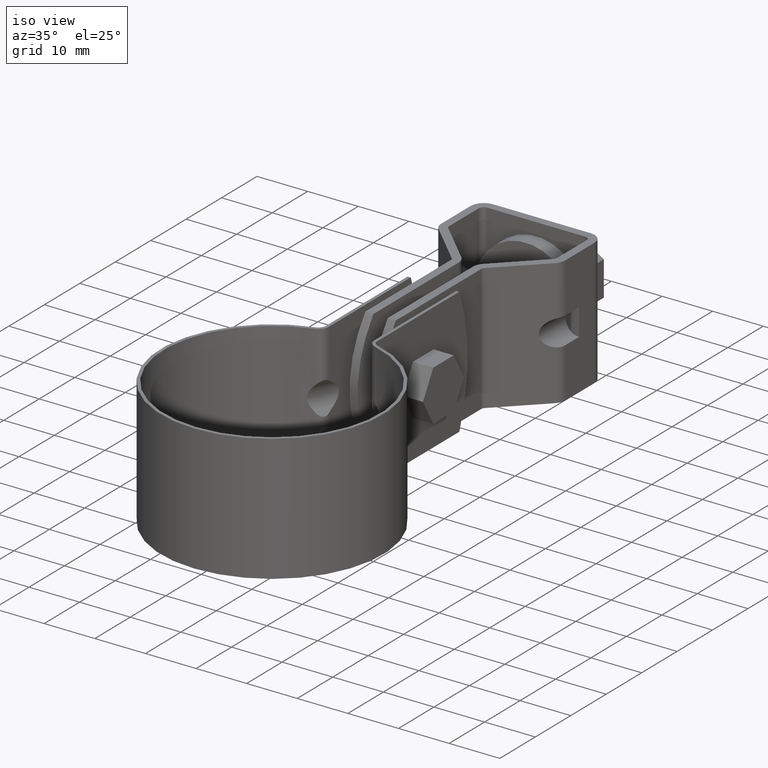
[diagram: clean part render]
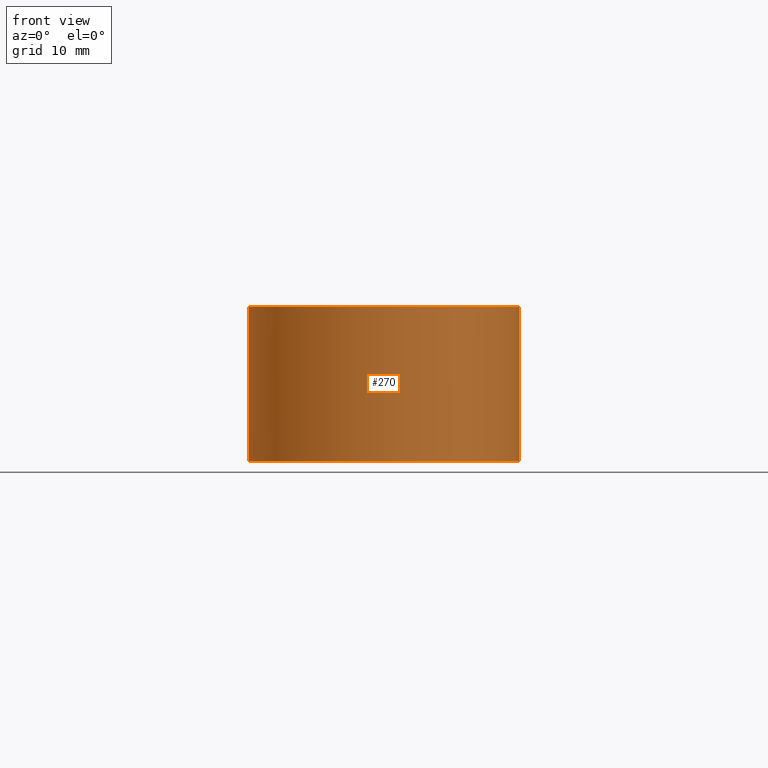
[diagram: tour spotlight — one face highlighted and labeled with its STEP entity id]
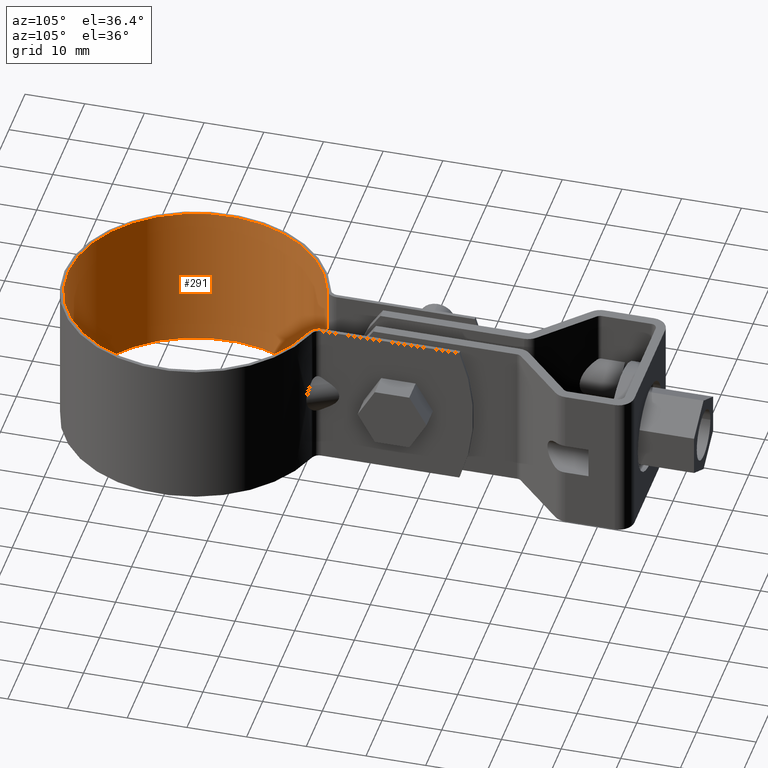
[diagram: tour spotlight — one face highlighted and labeled with its STEP entity id]
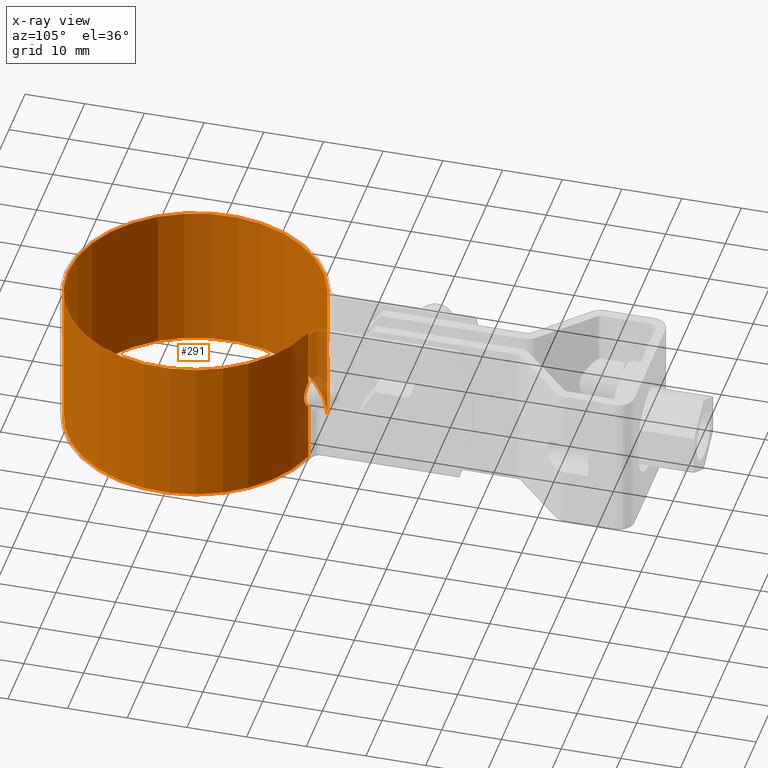
[diagram: x-ray of the same camera — body ghosted, this tour face saturated]
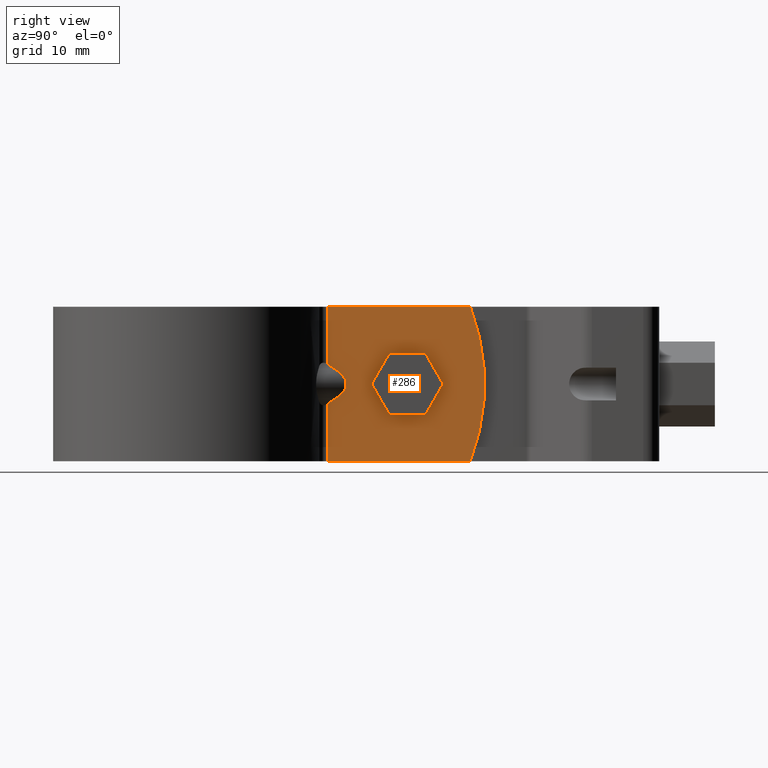
[diagram: tour spotlight — one face highlighted and labeled with its STEP entity id]
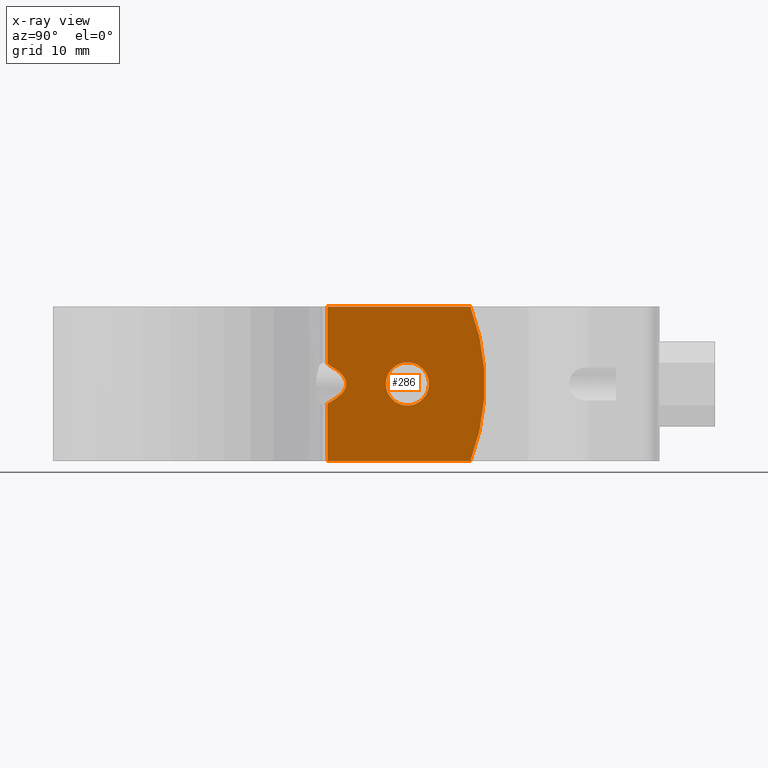
[diagram: x-ray of the same camera — body ghosted, this tour face saturated]
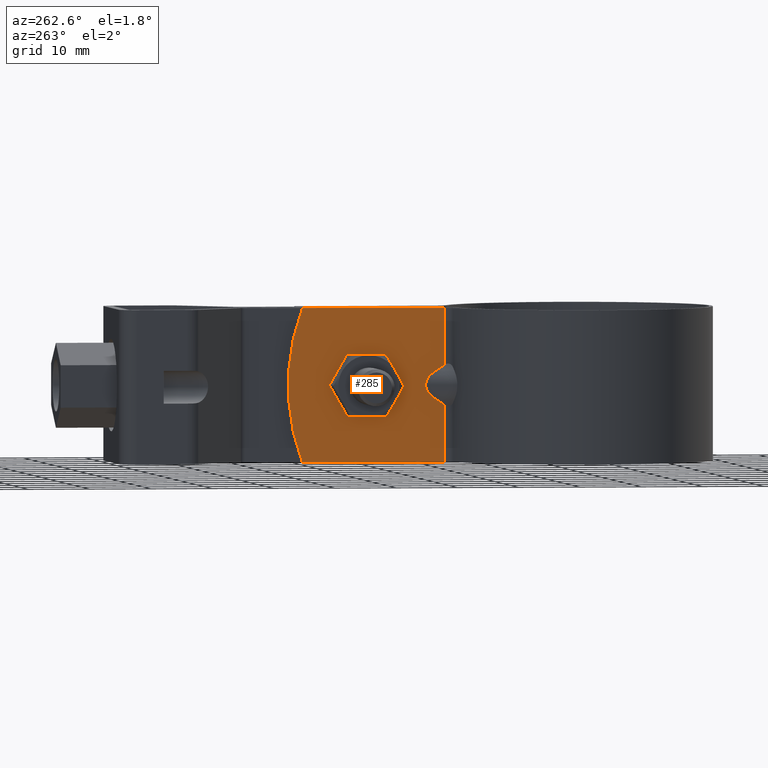
[diagram: tour spotlight — one face highlighted and labeled with its STEP entity id]
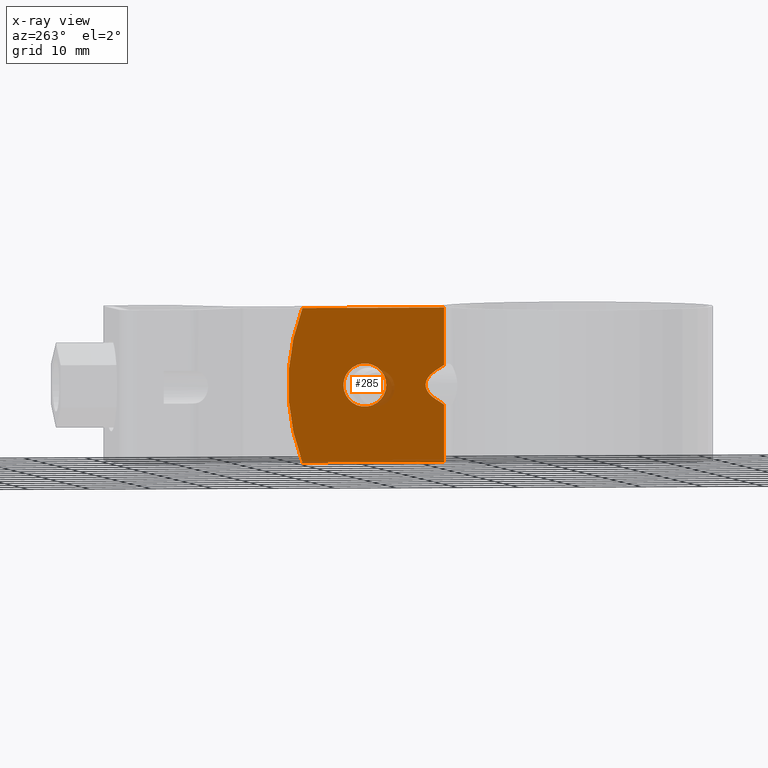
[diagram: x-ray of the same camera — body ghosted, this tour face saturated]
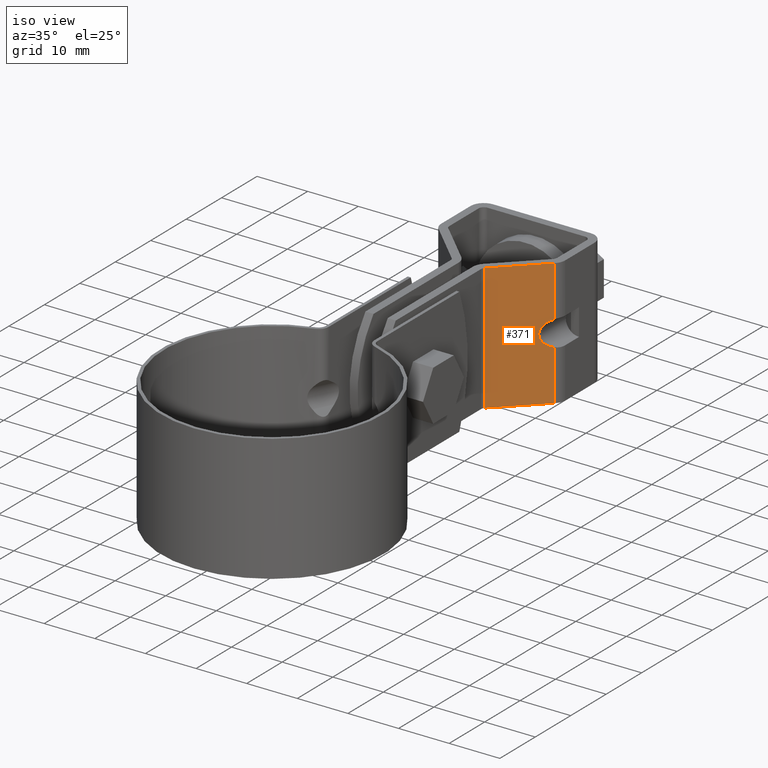
[diagram: tour spotlight — one face highlighted and labeled with its STEP entity id]
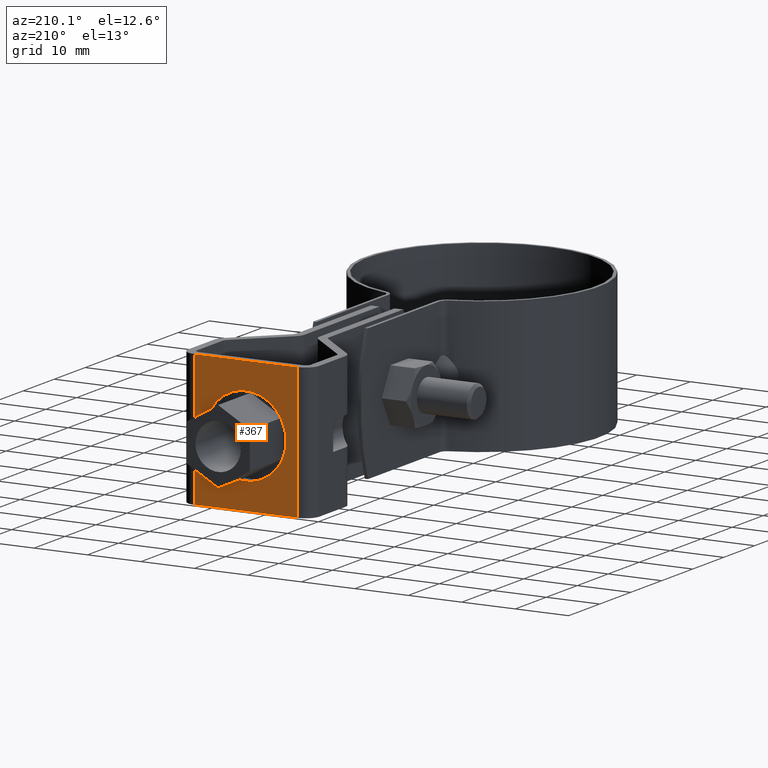
[diagram: tour spotlight — one face highlighted and labeled with its STEP entity id]
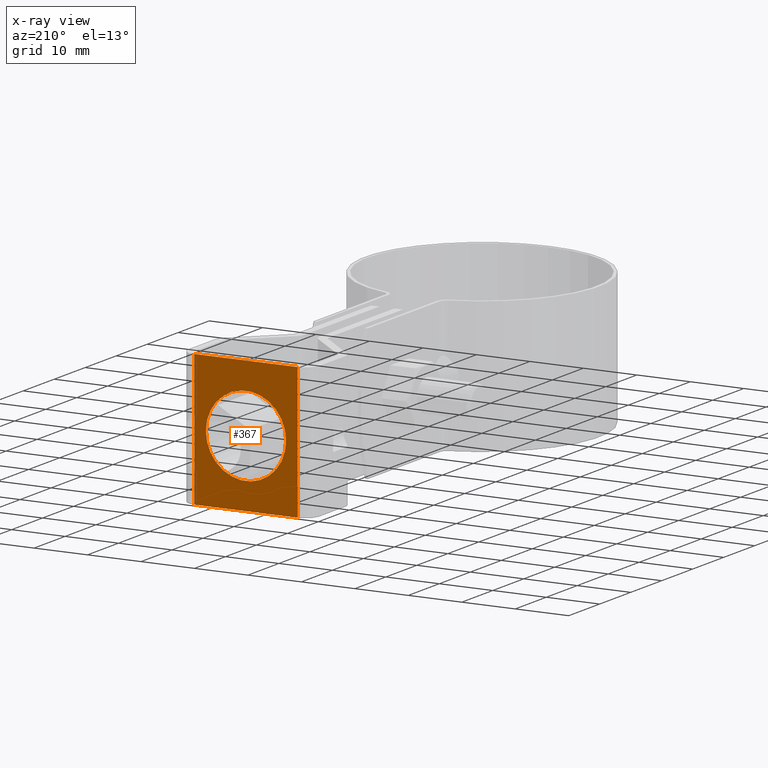
[diagram: x-ray of the same camera — body ghosted, this tour face saturated]
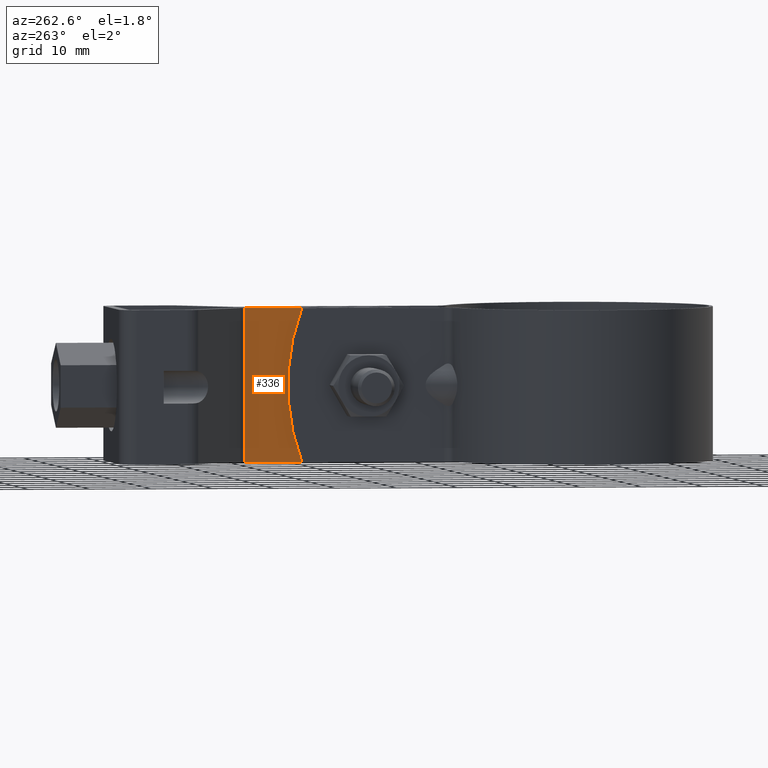
[diagram: tour spotlight — one face highlighted and labeled with its STEP entity id]
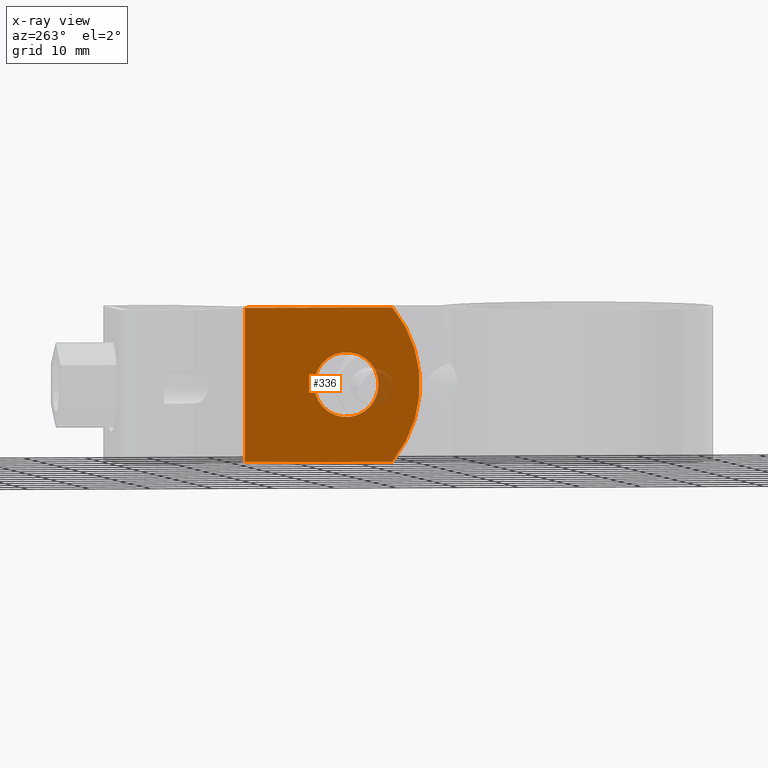
[diagram: x-ray of the same camera — body ghosted, this tour face saturated]
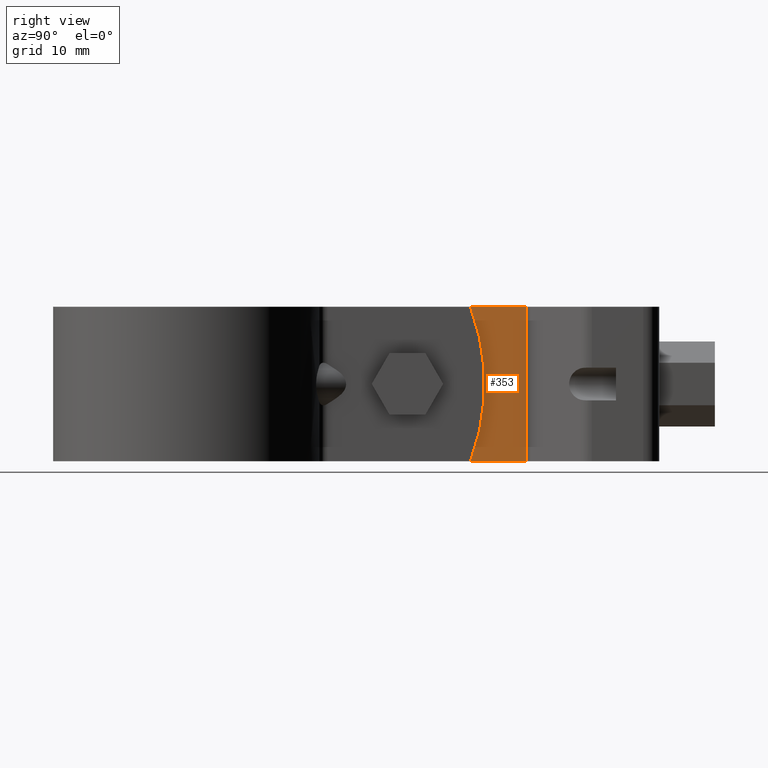
[diagram: tour spotlight — one face highlighted and labeled with its STEP entity id]
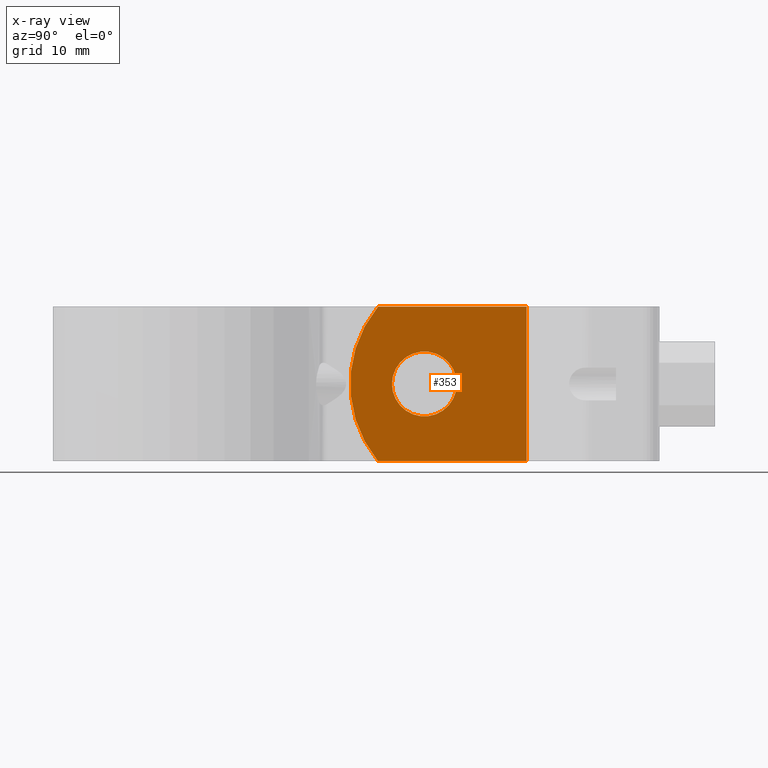
[diagram: x-ray of the same camera — body ghosted, this tour face saturated]
A machine part: a face-by-face anatomy tour. The part has 122 B-rep faces; the first image is the clean iso view, then the 8 largest visible faces are spotlighted one at a time (largest first), each with its STEP entity span.

Face 1 — front view, entity #270. In plain terms, the highlighted cylindrical surface (partial cylindrical patch) has radius 21.95 mm, axis along (0, 0, -1).
Definition (entity closure, byte-faithful):
#270 = ADVANCED_FACE( '', ( #396 ), #397, .T. );
#396 = FACE_OUTER_BOUND( '', #668, .T. );
#397 = CYLINDRICAL_SURFACE( '', #669, 21.9500000000000 );
#668 = EDGE_LOOP( '', ( #963, #964, #965, #966, #967, #968, #969, #970, #971, #972, #973, #974 ) );
#669 = AXIS2_PLACEMENT_3D( '', #975, #976, #977 );
#963 = ORIENTED_EDGE( '', *, *, #1953, .F. );
#964 = ORIENTED_EDGE( '', *, *, #1952, .T. );
#965 = ORIENTED_EDGE( '', *, *, #1954, .F. );
#966 = ORIENTED_EDGE( '', *, *, #1955, .F. );
#967 = ORIENTED_EDGE( '', *, *, #1956, .F. );
#968 = ORIENTED_EDGE( '', *, *, #1957, .F. );
#969 = ORIENTED_EDGE( '', *, *, #1958, .F. );
#970 = ORIENTED_EDGE( '', *, *, #1959, .F. );
#971 = ORIENTED_EDGE( '', *, *, #1941, .T. );
#972 = ORIENTED_EDGE( '', *, *, #1960, .T. );
#973 = ORIENTED_EDGE( '', *, *, #1961, .F. );
#974 = ORIENTED_EDGE( '', *, *, #1962, .F. );
#975 = CARTESIAN_POINT( '', ( 0.000000000000000, 0.000000000000000, -12.5000000000000 ) );
#976 = DIRECTION( '', ( 0.000000000000000, 0.000000000000000, -1.00000000000000 ) );
#977 = DIRECTION( '', ( -1.00000000000000, 6.06692130572647E-017, 0.000000000000000 ) );
#1941 = EDGE_CURVE( '', #2266, #2264, #2267, .T. );
#1952 = EDGE_CURVE( '', #2281, #2285, #2287, .T. );
#1953 = EDGE_CURVE( '', #2281, #2288, #2289, .F. );
#1954 = EDGE_CURVE( '', #2290, #2285, #2291, .T. );
#1955 = EDGE_CURVE( '', #2292, #2290, #2293, .T. );
#1956 = EDGE_CURVE( '', #2294, #2292, #2295, .F. );
#1957 = EDGE_CURVE( '', #2296, #2294, #2297, .T. );
#1958 = EDGE_CURVE( '', #2298, #2296, #2299, .F. );
#1959 = EDGE_CURVE( '', #2266, #2298, #2300, .T. );
#1960 = EDGE_CURVE( '', #2264, #2301, #2302, .T. );
#1961 = EDGE_CURVE( '', #2303, #2301, #2304, .F. );
#1962 = EDGE_CURVE( '', #2288, #2303, #2305, .T. );
#2264 = VERTEX_POINT( '', #2800 );
#2266 = VERTEX_POINT( '', #2802 );
#2267 = CIRCLE( '', #2803, 21.9500000000000 );
#2281 = VERTEX_POINT( '', #2821 );
#2285 = VERTEX_POINT( '', #2826 );
#2287 = LINE( '', #2828, #2829 );
#2288 = VERTEX_POINT( '', #2830 );
#2289 = ELLIPSE( '', #2831, 38.2686571638831, 21.9500000000000 );
#2290 = VERTEX_POINT( '', #2832 );
#2291 = CIRCLE( '', #2833, 21.9500000000000 );
#2292 = VERTEX_POINT( '', #2834 );
#2293 = LINE( '', #2835, #2836 );
#2294 = VERTEX_POINT( '', #2837 );
#2295 = ELLIPSE( '', #2838, 38.2686571638831, 21.9500000000000 );
#2296 = VERTEX_POINT( '', #2839 );
#2297 = B_SPLINE_CURVE_WITH_KNOTS( '', 3, ( #2840, #2841, #2842, #2843, #2844, #2845, #2846, #2847, #2848, #2849, #2850, #2851, #2852, #2853, #2854, #2855, #2856, #2857 ), .UNSPECIFIED., .F., .F., ( 4, 2, 2, 2, 2, 2, 2, 2, 4 ), ( 1.00029035355737E-017, 0.000643646225416495, 0.00128729245083298, 0.00193093867624947, 0.00257458490166595, 0.00321823112708244, 0.00386187735249892, 0.00450552357791541, 0.00514916980333189 ), .UNSPECIFIED. );
#2298 = VERTEX_POINT( '', #2858 );
#2299 = ELLIPSE( '', #2859, 38.2686571638831, 21.9500000000000 );
#2300 = LINE( '', #2860, #2861 );
#2301 = VERTEX_POINT( '', #2862 );
#2302 = LINE( '', #2863, #2864 );
#2303 = VERTEX_POINT( '', #2865 );
#2304 = ELLIPSE( '', #2866, 38.2686571638831, 21.9500000000000 );
#2305 = B_SPLINE_CURVE_WITH_KNOTS( '', 3, ( #2867, #2868, #2869, #2870, #2871, #2872, #2873, #2874, #2875, #2876, #2877, #2878, #2879, #2880, #2881, #2882, #2883, #2884 ), .UNSPECIFIED., .F., .F., ( 4, 2, 2, 2, 2, 2, 2, 2, 4 ), ( 0.000000000000000, 0.000643003230828981, 0.00128600646165796, 0.00192900969248694, 0.00257201292331592, 0.00321501615414490, 0.00385801938497388, 0.00450102261580286, 0.00514402584663184 ), .UNSPECIFIED. );
#2800 = CARTESIAN_POINT( '', ( 6.11027837259102, 21.0823859705074, -12.5000000000000 ) );
#2802 = CARTESIAN_POINT( '', ( -6.11027837259099, 21.0823859705074, -12.5000000000000 ) );
#2803 = AXIS2_PLACEMENT_3D( '', #3686, #3687, #3688 );
#2821 = CARTESIAN_POINT( '', ( 6.11027837259102, 21.0823859705074, 2.81199475558775 ) );
#2826 = CARTESIAN_POINT( '', ( 6.11027837259102, 21.0823859705074, 12.5000000000000 ) );
#2828 = CARTESIAN_POINT( '', ( 6.11027837259102, 21.0823859705074, -12.5000000000000 ) );
#2829 = VECTOR( '', #3709, 1000.00000000000 );
#2830 = CARTESIAN_POINT( '', ( 6.59117679013547, 20.9370219592276, 2.29430574540413 ) );
#2831 = AXIS2_PLACEMENT_3D( '', #3710, #3711, #3712 );
#2832 = CARTESIAN_POINT( '', ( -6.11027837259100, 21.0823859705074, 12.5000000000000 ) );
#2833 = AXIS2_PLACEMENT_3D( '', #3713, #3714, #3715 );
#2834 = CARTESIAN_POINT( '', ( -6.11027837259100, 21.0823859705074, 2.81199475558776 ) );
#2835 = CARTESIAN_POINT( '', ( -6.11027837259100, 21.0823859705074, -12.5000000000000 ) );
#2836 = VECTOR( '', #3716, 1000.00000000000 );
#2837 = CARTESIAN_POINT( '', ( -6.59117679013547, 20.9370219592276, 2.29430574540413 ) );
#2838 = AXIS2_PLACEMENT_3D( '', #3717, #3718, #3719 );
#2839 = CARTESIAN_POINT( '', ( -6.59117679013544, 20.9370219592276, -2.29430574540421 ) );
#2840 = CARTESIAN_POINT( '', ( -6.59117679013547, 20.9370219592276, -2.29430574540424 ) );
#2841 = CARTESIAN_POINT( '', ( -6.73596642015415, 20.8914407848519, -2.13961577287858 ) );
#2842 = CARTESIAN_POINT( '', ( -6.86855956127921, 20.8480484759778, -1.97590041503399 ) );
#2843 = CARTESIAN_POINT( '', ( -7.10639212043767, 20.7681830388251, -1.62776142069920 ) );
#2844 = CARTESIAN_POINT( '', ( -7.21236482773339, 20.7314476503326, -1.44181096666878 ) );
#2845 = CARTESIAN_POINT( '', ( -7.38756508147717, 20.6696640092127, -1.05137800395723 ) );
#2846 = CARTESIAN_POINT( '', ( -7.45590755129852, 20.6449610943123, -0.849531728088050 ) );
#2847 = CARTESIAN_POINT( '', ( -7.54943236496550, 20.6109448343832, -0.430812582704735 ) );
#2848 = CARTESIAN_POINT( '', ( -7.57387951252292, 20.6019137251735, -0.212867292429495 ) );
#2849 = CARTESIAN_POINT( '', ( -7.57369458146983, 20.6019817104161, 0.215368904668619 ) );
#2850 = CARTESIAN_POINT( '', ( -7.54980073066154, 20.6108110979059, 0.429304921686981 ) );
#2851 = CARTESIAN_POINT( '', ( -7.45535136804637, 20.6451631421316, 0.851879983639534 ) );
#2852 = CARTESIAN_POINT( '', ( -7.38648519218861, 20.6700493905331, 1.05414795200619 ) );
#2853 = CARTESIAN_POINT( '', ( -7.21151355048943, 20.7317432362213, 1.44334057757107 ) );
#2854 = CARTESIAN_POINT( '', ( -7.10481791751957, 20.7687220786617, 1.63034635054457 ) );
#2855 = CARTESIAN_POINT( '', ( -6.86683761629650, 20.8486161548725, 1.97813646589285 ) );
#2856 = CARTESIAN_POINT( '', ( -6.73472499460489, 20.8918315976085, 2.14094208391388 ) );
#2857 = CARTESIAN_POINT( '', ( -6.59117679013547, 20.9370219592276, 2.29430574540413 ) );
#2858 = CARTESIAN_POINT( '', ( -6.11027837259100, 21.0823859705074, -2.81199475558785 ) );
#2859 = AXIS2_PLACEMENT_3D( '', #3720, #3721, #3722 );
#2860 = CARTESIAN_POINT( '', ( -6.11027837259100, 21.0823859705074, -12.5000000000000 ) );
#2861 = VECTOR( '', #3723, 1000.00000000000 );
#2862 = CARTESIAN_POINT( '', ( 6.11027837259102, 21.0823859705074, -2.81199475558784 ) );
#2863 = CARTESIAN_POINT( '', ( 6.11027837259102, 21.0823859705074, -12.5000000000000 ) );
#2864 = VECTOR( '', #3724, 1000.00000000000 );
#2865 = CARTESIAN_POINT( '', ( 6.59117679013544, 20.9370219592276, -2.29430574540421 ) );
#2866 = AXIS2_PLACEMENT_3D( '', #3725, #3726, #3727 );
#2867 = CARTESIAN_POINT( '', ( 6.59117679013547, 20.9370219592276, 2.29430574540413 ) );
#2868 = CARTESIAN_POINT( '', ( 6.73582177711151, 20.8914863198792, 2.13977030624034 ) );
#2869 = CARTESIAN_POINT( '', ( 6.86829440793467, 20.8481352475892, 1.97622733239020 ) );
#2870 = CARTESIAN_POINT( '', ( 7.10594441589945, 20.7683356418849, 1.62847780042625 ) );
#2871 = CARTESIAN_POINT( '', ( 7.21184957794919, 20.7316268444520, 1.44275932231320 ) );
#2872 = CARTESIAN_POINT( '', ( 7.38702972922578, 20.6698552905458, 1.05276971445064 ) );
#2873 = CARTESIAN_POINT( '', ( 7.45540309755228, 20.6451434835998, 0.851159409986368 ) );
#2874 = CARTESIAN_POINT( '', ( 7.54909477616163, 20.6110686978125, 0.432949150168239 ) );
#2875 = CARTESIAN_POINT( '', ( 7.57368982252000, 20.6019834599240, 0.215228123105817 ) );
#2876 = CARTESIAN_POINT( '', ( 7.57388421364647, 20.6019119969240, -0.212596009195423 ) );
#2877 = CARTESIAN_POINT( '', ( 7.55024159148472, 20.6106489194631, -0.426258387843371 ) );
#2878 = CARTESIAN_POINT( '', ( 7.45632254419125, 20.6448117232426, -0.848592946797394 ) );
#2879 = CARTESIAN_POINT( '', ( 7.38774380881195, 20.6695981046082, -1.05074959656046 ) );
#2880 = CARTESIAN_POINT( '', ( 7.21339718332191, 20.7310864516625, -1.43973888924279 ) );
#2881 = CARTESIAN_POINT( '', ( 7.10706589190063, 20.7679542000608, -1.62670539277040 ) );
#2882 = CARTESIAN_POINT( '', ( 6.86869483637674, 20.8480056238570, -1.97577192531011 ) );
#2883 = CARTESIAN_POINT( '', ( 6.73593818465854, 20.8914496736587, -2.13964593904475 ) );
#2884 = CARTESIAN_POINT( '', ( 6.59117679013548, 20.9370219592276, -2.29430574540423 ) );
#3686 = CARTESIAN_POINT( '', ( 0.000000000000000, 0.000000000000000, -12.5000000000000 ) );
#3687 = DIRECTION( '', ( 0.000000000000000, 0.000000000000000, 1.00000000000000 ) );
#3688 = DIRECTION( '', ( 1.00000000000000, 0.000000000000000, 0.000000000000000 ) );
#3709 = DIRECTION( '', ( 0.000000000000000, 0.000000000000000, 1.00000000000000 ) );
#3710 = CARTESIAN_POINT( '', ( 0.000000000000000, 0.000000000000000, 24.2563523462386 ) );
#3711 = DIRECTION( '', ( 0.729869815763731, 0.371887245949431, 0.573576436351046 ) );
#3712 = DIRECTION( '', ( -0.511060346909496, -0.260398252977840, 0.819152044288992 ) );
#3713 = CARTESIAN_POINT( '', ( 0.000000000000000, 0.000000000000000, 12.5000000000000 ) );
#3714 = DIRECTION( '', ( 0.000000000000000, 0.000000000000000, 1.00000000000000 ) );
#3715 = DIRECTION( '', ( 1.00000000000000, 0.000000000000000, 0.000000000000000 ) );
#3716 = DIRECTION( '', ( 0.000000000000000, 0.000000000000000, 1.00000000000000 ) );
#3717 = CARTESIAN_POINT( '', ( 0.000000000000000, 0.000000000000000, 24.2563523462386 ) );
#3718 = DIRECTION( '', ( -0.729869815763731, 0.371887245949431, 0.573576436351046 ) );
#3719 = DIRECTION( '', ( 0.511060346909496, -0.260398252977840, 0.819152044288992 ) );
#3720 = CARTESIAN_POINT( '', ( 0.000000000000000, 0.000000000000000, -24.2563523462387 ) );
#3721 = DIRECTION( '', ( -0.729869815763730, 0.371887245949432, -0.573576436351046 ) );
#3722 = DIRECTION( '', ( -0.511060346909496, 0.260398252977841, 0.819152044288992 ) );
#3723 = DIRECTION( '', ( 0.000000000000000, 0.000000000000000, 1.00000000000000 ) );
#3724 = DIRECTION( '', ( 0.000000000000000, 0.000000000000000, 1.00000000000000 ) );
#3725 = CARTESIAN_POINT( '', ( 0.000000000000000, 0.000000000000000, -24.2563523462387 ) );
#3726 = DIRECTION( '', ( 0.729869815763730, 0.371887245949432, -0.573576436351046 ) );
#3727 = DIRECTION( '', ( 0.511060346909496, 0.260398252977841, 0.819152044288992 ) );

Face 2 — auxiliary view, entity #291. An x-ray twin of the same camera follows (body ghosted, this face saturated) — the face is partly hidden behind the body. In plain terms, the highlighted cylindrical surface (partial cylindrical patch) has radius 21.35 mm, axis along (0, 0, -1).
Definition (entity closure, byte-faithful):
#291 = ADVANCED_FACE( '', ( #443 ), #444, .F. );
#443 = FACE_OUTER_BOUND( '', #715, .T. );
#444 = CYLINDRICAL_SURFACE( '', #716, 21.3500000000000 );
#715 = EDGE_LOOP( '', ( #1129, #1130, #1131, #1132, #1133, #1134, #1135, #1136, #1137, #1138, #1139, #1140 ) );
#716 = AXIS2_PLACEMENT_3D( '', #1141, #1142, #1143 );
#1129 = ORIENTED_EDGE( '', *, *, #1976, .F. );
#1130 = ORIENTED_EDGE( '', *, *, #1937, .F. );
#1131 = ORIENTED_EDGE( '', *, *, #1947, .F. );
#1132 = ORIENTED_EDGE( '', *, *, #2013, .T. );
#1133 = ORIENTED_EDGE( '', *, *, #1986, .T. );
#1134 = ORIENTED_EDGE( '', *, *, #1989, .T. );
#1135 = ORIENTED_EDGE( '', *, *, #1981, .T. );
#1136 = ORIENTED_EDGE( '', *, *, #2014, .T. );
#1137 = ORIENTED_EDGE( '', *, *, #2015, .T. );
#1138 = ORIENTED_EDGE( '', *, *, #2011, .F. );
#1139 = ORIENTED_EDGE( '', *, *, #1973, .F. );
#1140 = ORIENTED_EDGE( '', *, *, #1979, .F. );
#1141 = CARTESIAN_POINT( '', ( 0.000000000000000, 0.000000000000000, -12.5000000000000 ) );
#1142 = DIRECTION( '', ( 0.000000000000000, 0.000000000000000, -1.00000000000000 ) );
#1143 = DIRECTION( '', ( -1.00000000000000, 6.06692130572647E-017, 0.000000000000000 ) );
#1937 = EDGE_CURVE( '', #2256, #2252, #2258, .T. );
#1947 = EDGE_CURVE( '', #2276, #2256, #2278, .T. );
#1973 = EDGE_CURVE( '', #2320, #2323, #2324, .F. );
#1976 = EDGE_CURVE( '', #2252, #2328, #2329, .F. );
#1979 = EDGE_CURVE( '', #2328, #2320, #2333, .T. );
#1981 = EDGE_CURVE( '', #2335, #2336, #2337, .F. );
#1986 = EDGE_CURVE( '', #2346, #2343, #2347, .F. );
#1989 = EDGE_CURVE( '', #2343, #2335, #2351, .T. );
#2011 = EDGE_CURVE( '', #2323, #2385, #2386, .T. );
#2013 = EDGE_CURVE( '', #2276, #2346, #2388, .T. );
#2014 = EDGE_CURVE( '', #2336, #2389, #2390, .T. );
#2015 = EDGE_CURVE( '', #2389, #2385, #2391, .T. );
#2252 = VERTEX_POINT( '', #2784 );
#2256 = VERTEX_POINT( '', #2789 );
#2258 = LINE( '', #2791, #2792 );
#2276 = VERTEX_POINT( '', #2815 );
#2278 = CIRCLE( '', #2817, 21.3500000000000 );
#2320 = VERTEX_POINT( '', #2905 );
#2323 = VERTEX_POINT( '', #2909 );
#2324 = ELLIPSE( '', #2910, 37.2225890865105, 21.3500000000000 );
#2328 = VERTEX_POINT( '', #2915 );
#2329 = ELLIPSE( '', #2916, 37.2225890865104, 21.3500000000000 );
#2333 = B_SPLINE_CURVE_WITH_KNOTS( '', 3, ( #2922, #2923, #2924, #2925, #2926, #2927, #2928, #2929, #2930, #2931, #2932, #2933, #2934, #2935, #2936, #2937, #2938, #2939 ), .UNSPECIFIED., .F., .F., ( 4, 2, 2, 2, 2, 2, 2, 2, 4 ), ( 6.25463444138550E-018, 0.000545737610309046, 0.00109147522061808, 0.00163721283092712, 0.00218295044123616, 0.00272868805154520, 0.00327442566185424, 0.00382016327216328, 0.00436590088247232 ), .UNSPECIFIED. );
#2335 = VERTEX_POINT( '', #2941 );
#2336 = VERTEX_POINT( '', #2942 );
#2337 = ELLIPSE( '', #2943, 37.2225890865105, 21.3500000000000 );
#2343 = VERTEX_POINT( '', #2951 );
#2346 = VERTEX_POINT( '', #2955 );
#2347 = ELLIPSE( '', #2956, 37.2225890865104, 21.3500000000000 );
#2351 = B_SPLINE_CURVE_WITH_KNOTS( '', 3, ( #2961, #2962, #2963, #2964, #2965, #2966, #2967, #2968, #2969, #2970, #2971, #2972, #2973, #2974, #2975, #2976, #2977, #2978 ), .UNSPECIFIED., .F., .F., ( 4, 2, 2, 2, 2, 2, 2, 2, 4 ), ( 6.25463444138550E-018, 0.000545737610309046, 0.00109147522061808, 0.00163721283092712, 0.00218295044123616, 0.00272868805154520, 0.00327442566185424, 0.00382016327216328, 0.00436590088247232 ), .UNSPECIFIED. );
#2385 = VERTEX_POINT( '', #3022 );
#2386 = LINE( '', #3023, #3024 );
#2388 = LINE( '', #3026, #3027 );
#2389 = VERTEX_POINT( '', #3028 );
#2390 = LINE( '', #3029, #3030 );
#2391 = CIRCLE( '', #3031, 21.3500000000000 );
#2784 = CARTESIAN_POINT( '', ( 5.94325481798713, 20.5061020715414, -2.35210501782299 ) );
#2789 = CARTESIAN_POINT( '', ( 5.94325481798716, 20.5061020715413, -12.5000000000000 ) );
#2791 = CARTESIAN_POINT( '', ( 5.94325481798716, 20.5061020715413, -12.5000000000000 ) );
#2792 = VECTOR( '', #3680, 1000.00000000000 );
#2815 = CARTESIAN_POINT( '', ( -5.94325481798715, 20.5061020715414, -12.5000000000000 ) );
#2817 = AXIS2_PLACEMENT_3D( '', #3698, #3699, #3700 );
#2905 = CARTESIAN_POINT( '', ( 6.31606450138374, 20.3943577789143, 1.95015988359350 ) );
#2909 = CARTESIAN_POINT( '', ( 5.94325481798716, 20.5061020715413, 2.35210501782287 ) );
#2910 = AXIS2_PLACEMENT_3D( '', #3744, #3745, #3746 );
#2915 = CARTESIAN_POINT( '', ( 6.31606450138372, 20.3943577789143, -1.95015988359358 ) );
#2916 = AXIS2_PLACEMENT_3D( '', #3751, #3752, #3753 );
#2922 = CARTESIAN_POINT( '', ( 6.31606450138376, 20.3943577789142, -1.95015988359360 ) );
#2923 = CARTESIAN_POINT( '', ( 6.43873976372453, 20.3563656598160, -1.81868972232978 ) );
#2924 = CARTESIAN_POINT( '', ( 6.55099136628197, 20.3203891987608, -1.67951997329489 ) );
#2925 = CARTESIAN_POINT( '', ( 6.75216266681333, 20.2544317222456, -1.38361101148557 ) );
#2926 = CARTESIAN_POINT( '', ( 6.84175282917723, 20.2242185416663, -1.22544681495458 ) );
#2927 = CARTESIAN_POINT( '', ( 6.98950456806158, 20.1736318814853, -0.894149124475853 ) );
#2928 = CARTESIAN_POINT( '', ( 7.04683624285259, 20.1535687669341, -0.723492411806497 ) );
#2929 = CARTESIAN_POINT( '', ( 7.12542229015708, 20.1259184203866, -0.371157046461616 ) );
#2930 = CARTESIAN_POINT( '', ( 7.14654367999644, 20.1183849630378, -0.186587897743301 ) );
#2931 = CARTESIAN_POINT( '', ( 7.14711245660723, 20.1181829105835, 0.178864976240830 ) );
#2932 = CARTESIAN_POINT( '', ( 7.12732130976360, 20.1252453961255, 0.359285155075153 ) );
#2933 = CARTESIAN_POINT( '', ( 7.04927838624901, 20.1527140986033, 0.715720863418514 ) );
#2934 = CARTESIAN_POINT( '', ( 6.99081023736521, 20.1731774648551, 0.890526039650707 ) );
#2935 = CARTESIAN_POINT( '', ( 6.84404268504230, 20.2234417577401, 1.22099100152328 ) );
#2936 = CARTESIAN_POINT( '', ( 6.75459153772977, 20.2536262009892, 1.37974805204099 ) );
#2937 = CARTESIAN_POINT( '', ( 6.55185132424632, 20.3201162731894, 1.67854062764268 ) );
#2938 = CARTESIAN_POINT( '', ( 6.43898496187869, 20.3562897227664, 1.81842694530149 ) );
#2939 = CARTESIAN_POINT( '', ( 6.31606450138375, 20.3943577789142, 1.95015988359350 ) );
#2941 = CARTESIAN_POINT( '', ( -6.31606450138374, 20.3943577789143, 1.95015988359350 ) );
#2942 = CARTESIAN_POINT( '', ( -5.94325481798715, 20.5061020715414, 2.35210501782287 ) );
#2943 = AXIS2_PLACEMENT_3D( '', #3759, #3760, #3761 );
#2951 = CARTESIAN_POINT( '', ( -6.31606450138372, 20.3943577789143, -1.95015988359358 ) );
#2955 = CARTESIAN_POINT( '', ( -5.94325481798713, 20.5061020715414, -2.35210501782299 ) );
#2956 = AXIS2_PLACEMENT_3D( '', #3768, #3769, #3770 );
#2961 = CARTESIAN_POINT( '', ( -6.31606450138376, 20.3943577789142, -1.95015988359360 ) );
#2962 = CARTESIAN_POINT( '', ( -6.43873976372453, 20.3563656598160, -1.81868972232978 ) );
#2963 = CARTESIAN_POINT( '', ( -6.55099136628197, 20.3203891987608, -1.67951997329489 ) );
#2964 = CARTESIAN_POINT( '', ( -6.75216266681333, 20.2544317222456, -1.38361101148557 ) );
#2965 = CARTESIAN_POINT( '', ( -6.84175282917723, 20.2242185416663, -1.22544681495458 ) );
#2966 = CARTESIAN_POINT( '', ( -6.98950456806158, 20.1736318814853, -0.894149124475853 ) );
#2967 = CARTESIAN_POINT( '', ( -7.04683624285259, 20.1535687669341, -0.723492411806497 ) );
#2968 = CARTESIAN_POINT( '', ( -7.12542229015708, 20.1259184203866, -0.371157046461616 ) );
#2969 = CARTESIAN_POINT( '', ( -7.14654367999644, 20.1183849630378, -0.186587897743301 ) );
#2970 = CARTESIAN_POINT( '', ( -7.14711245660723, 20.1181829105835, 0.178864976240830 ) );
#2971 = CARTESIAN_POINT( '', ( -7.12732130976360, 20.1252453961255, 0.359285155075153 ) );
#2972 = CARTESIAN_POINT( '', ( -7.04927838624901, 20.1527140986033, 0.715720863418514 ) );
#2973 = CARTESIAN_POINT( '', ( -6.99081023736521, 20.1731774648551, 0.890526039650707 ) );
#2974 = CARTESIAN_POINT( '', ( -6.84404268504230, 20.2234417577401, 1.22099100152328 ) );
#2975 = CARTESIAN_POINT( '', ( -6.75459153772977, 20.2536262009892, 1.37974805204099 ) );
#2976 = CARTESIAN_POINT( '', ( -6.55185132424632, 20.3201162731894, 1.67854062764268 ) );
#2977 = CARTESIAN_POINT( '', ( -6.43898496187869, 20.3562897227664, 1.81842694530149 ) );
#2978 = CARTESIAN_POINT( '', ( -6.31606450138375, 20.3943577789142, 1.95015988359350 ) );
#3022 = CARTESIAN_POINT( '', ( 5.94325481798716, 20.5061020715413, 12.5000000000000 ) );
#3023 = CARTESIAN_POINT( '', ( 5.94325481798716, 20.5061020715413, -12.5000000000000 ) );
#3024 = VECTOR( '', #3818, 1000.00000000000 );
#3026 = CARTESIAN_POINT( '', ( -5.94325481798715, 20.5061020715414, -12.5000000000000 ) );
#3027 = VECTOR( '', #3822, 1000.00000000000 );
#3028 = CARTESIAN_POINT( '', ( -5.94325481798715, 20.5061020715414, 12.5000000000000 ) );
#3029 = CARTESIAN_POINT( '', ( -5.94325481798715, 20.5061020715414, -12.5000000000000 ) );
#3030 = VECTOR( '', #3823, 1000.00000000000 );
#3031 = AXIS2_PLACEMENT_3D( '', #3824, #3825, #3826 );
#3680 = DIRECTION( '', ( 0.000000000000000, 0.000000000000000, 1.00000000000000 ) );
#3698 = CARTESIAN_POINT( '', ( 0.000000000000000, 0.000000000000000, -12.5000000000000 ) );
#3699 = DIRECTION( '', ( 0.000000000000000, 0.000000000000000, 1.00000000000000 ) );
#3700 = DIRECTION( '', ( 1.00000000000000, -6.06692130572647E-017, 0.000000000000000 ) );
#3744 = CARTESIAN_POINT( '', ( 0.000000000000000, 0.000000000000000, 23.2102842688660 ) );
#3745 = DIRECTION( '', ( -0.729869815763731, -0.371887245949431, -0.573576436351046 ) );
#3746 = DIRECTION( '', ( -0.511060346909496, -0.260398252977840, 0.819152044288992 ) );
#3751 = CARTESIAN_POINT( '', ( 0.000000000000000, 0.000000000000000, -23.2102842688660 ) );
#3752 = DIRECTION( '', ( -0.729869815763730, -0.371887245949432, 0.573576436351046 ) );
#3753 = DIRECTION( '', ( 0.511060346909496, 0.260398252977841, 0.819152044288992 ) );
#3759 = CARTESIAN_POINT( '', ( 0.000000000000000, 0.000000000000000, 23.2102842688660 ) );
#3760 = DIRECTION( '', ( -0.729869815763731, 0.371887245949431, 0.573576436351046 ) );
#3761 = DIRECTION( '', ( 0.511060346909496, -0.260398252977840, 0.819152044288992 ) );
#3768 = CARTESIAN_POINT( '', ( 0.000000000000000, 0.000000000000000, -23.2102842688660 ) );
#3769 = DIRECTION( '', ( -0.729869815763730, 0.371887245949432, -0.573576436351046 ) );
#3770 = DIRECTION( '', ( -0.511060346909496, 0.260398252977841, 0.819152044288992 ) );
#3818 = DIRECTION( '', ( 0.000000000000000, 0.000000000000000, 1.00000000000000 ) );
#3822 = DIRECTION( '', ( 0.000000000000000, 0.000000000000000, 1.00000000000000 ) );
#3823 = DIRECTION( '', ( 0.000000000000000, 0.000000000000000, 1.00000000000000 ) );
#3824 = CARTESIAN_POINT( '', ( 0.000000000000000, 0.000000000000000, 12.5000000000000 ) );
#3825 = DIRECTION( '', ( 0.000000000000000, 0.000000000000000, 1.00000000000000 ) );
#3826 = DIRECTION( '', ( 1.00000000000000, -6.06692130572647E-017, 0.000000000000000 ) );

Face 3 — right view, entity #286. An x-ray twin of the same camera follows (body ghosted, this face saturated) — the face is partly hidden behind the body. In plain terms, the highlighted planar face has unit normal (1, -0, 0).
Definition (entity closure, byte-faithful):
#286 = ADVANCED_FACE( '', ( #431, #432 ), #433, .T. );
#431 = FACE_OUTER_BOUND( '', #703, .T. );
#432 = FACE_BOUND( '', #704, .T. );
#433 = PLANE( '', #705 );
#703 = EDGE_LOOP( '', ( #1084, #1085, #1086, #1087, #1088, #1089, #1090, #1091 ) );
#704 = EDGE_LOOP( '', ( #1092 ) );
#705 = AXIS2_PLACEMENT_3D( '', #1093, #1094, #1095 );
#1084 = ORIENTED_EDGE( '', *, *, #1964, .F. );
#1085 = ORIENTED_EDGE( '', *, *, #2004, .F. );
#1086 = ORIENTED_EDGE( '', *, *, #2005, .F. );
#1087 = ORIENTED_EDGE( '', *, *, #2006, .F. );
#1088 = ORIENTED_EDGE( '', *, *, #1939, .T. );
#1089 = ORIENTED_EDGE( '', *, *, #1999, .T. );
#1090 = ORIENTED_EDGE( '', *, *, #2007, .F. );
#1091 = ORIENTED_EDGE( '', *, *, #1950, .F. );
#1092 = ORIENTED_EDGE( '', *, *, #1993, .T. );
#1093 = CARTESIAN_POINT( '', ( 5.10000000000000, 22.4270484014281, -12.5000000000000 ) );
#1094 = DIRECTION( '', ( 1.00000000000000, -6.06692130572647E-017, 0.000000000000000 ) );
#1095 = DIRECTION( '', ( 6.06692130572647E-017, 1.00000000000000, 0.000000000000000 ) );
#1939 = EDGE_CURVE( '', #2262, #2259, #2263, .T. );
#1950 = EDGE_CURVE( '', #2280, #2283, #2284, .T. );
#1964 = EDGE_CURVE( '', #2306, #2280, #2308, .T. );
#1993 = EDGE_CURVE( '', #2357, #2357, #2358, .F. );
#1999 = EDGE_CURVE( '', #2259, #2367, #2369, .T. );
#2004 = EDGE_CURVE( '', #2375, #2306, #2376, .T. );
#2005 = EDGE_CURVE( '', #2377, #2375, #2378, .T. );
#2006 = EDGE_CURVE( '', #2262, #2377, #2379, .T. );
#2007 = EDGE_CURVE( '', #2283, #2367, #2380, .T. );
#2259 = VERTEX_POINT( '', #2793 );
#2262 = VERTEX_POINT( '', #2797 );
#2263 = LINE( '', #2798, #2799 );
#2280 = VERTEX_POINT( '', #2820 );
#2283 = VERTEX_POINT( '', #2823 );
#2284 = LINE( '', #2824, #2825 );
#2306 = VERTEX_POINT( '', #2885 );
#2308 = LINE( '', #2888, #2889 );
#2357 = VERTEX_POINT( '', #2984 );
#2358 = CIRCLE( '', #2985, 3.50000000000000 );
#2367 = VERTEX_POINT( '', #2995 );
#2369 = CIRCLE( '', #2998, 35.0000000000000 );
#2375 = VERTEX_POINT( '', #3007 );
#2376 = ELLIPSE( '', #3008, 8.81075705834105, 4.00000000000000 );
#2377 = VERTEX_POINT( '', #3009 );
#2378 = LINE( '', #3010, #3011 );
#2379 = LINE( '', #3012, #3013 );
#2380 = LINE( '', #3014, #3015 );
#2793 = CARTESIAN_POINT( '', ( 5.10000000000001, 45.5621158154223, -12.5000000000000 ) );
#2797 = CARTESIAN_POINT( '', ( 5.10000000000000, 22.4270484014281, -12.5000000000000 ) );
#2798 = CARTESIAN_POINT( '', ( 5.10000000000000, 22.4270484014281, -12.5000000000000 ) );
#2799 = VECTOR( '', #3682, 1000.00000000000 );
#2820 = CARTESIAN_POINT( '', ( 5.10000000000000, 22.4270484014281, 3.22573016462234 ) );
#2823 = CARTESIAN_POINT( '', ( 5.10000000000000, 22.4270484014281, 12.5000000000000 ) );
#2824 = CARTESIAN_POINT( '', ( 5.10000000000000, 22.4270484014281, -12.5000000000000 ) );
#2825 = VECTOR( '', #3705, 1000.00000000000 );
#2885 = CARTESIAN_POINT( '', ( 5.10000000000000, 23.8636211931129, 2.29430574540413 ) );
#2888 = CARTESIAN_POINT( '', ( 5.10000000000000, 29.6054354213314, -1.42848923841662 ) );
#2889 = VECTOR( '', #3729, 1000.00000000000 );
#2984 = CARTESIAN_POINT( '', ( 5.10000000000000, 38.8703737388673, -8.67361737988404E-016 ) );
#2985 = AXIS2_PLACEMENT_3D( '', #3784, #3785, #3786 );
#2995 = CARTESIAN_POINT( '', ( 5.10000000000001, 45.5621158154223, 12.5000000000000 ) );
#2998 = AXIS2_PLACEMENT_3D( '', #3798, #3799, #3800 );
#3007 = CARTESIAN_POINT( '', ( 5.10000000000000, 23.8636211931129, -2.29430574540421 ) );
#3008 = AXIS2_PLACEMENT_3D( '', #3807, #3808, #3809 );
#3009 = CARTESIAN_POINT( '', ( 5.10000000000000, 22.4270484014281, -3.22573016462243 ) );
#3010 = CARTESIAN_POINT( '', ( 5.10000000000000, 18.1935853120560, -5.97056211614217 ) );
#3011 = VECTOR( '', #3810, 1000.00000000000 );
#3012 = CARTESIAN_POINT( '', ( 5.10000000000000, 22.4270484014281, -12.5000000000000 ) );
#3013 = VECTOR( '', #3811, 1000.00000000000 );
#3014 = CARTESIAN_POINT( '', ( 5.10000000000000, 22.4270484014281, 12.5000000000000 ) );
#3015 = VECTOR( '', #3812, 1000.00000000000 );
#3682 = DIRECTION( '', ( 6.06692130572647E-017, 1.00000000000000, 0.000000000000000 ) );
#3705 = DIRECTION( '', ( 0.000000000000000, 0.000000000000000, 1.00000000000000 ) );
#3729 = DIRECTION( '', ( -5.09056978337516E-017, -0.839069690679893, 0.544023946331730 ) );
#3784 = CARTESIAN_POINT( '', ( 5.10000000000000, 35.3703737388673, -8.67361737988404E-016 ) );
#3785 = DIRECTION( '', ( 1.00000000000000, -6.06692130572647E-017, 0.000000000000000 ) );
#3786 = DIRECTION( '', ( 6.06692130572647E-017, 1.00000000000000, 0.000000000000000 ) );
#3798 = CARTESIAN_POINT( '', ( 5.10000000000001, 12.8703737388673, 2.77555756156289E-014 ) );
#3799 = DIRECTION( '', ( 1.00000000000000, -6.06692130572647E-017, 0.000000000000000 ) );
#3800 = DIRECTION( '', ( 6.06692130572647E-017, 1.00000000000000, 0.000000000000000 ) );
#3807 = CARTESIAN_POINT( '', ( 5.10000000000000, 16.6462715370392, -5.85061194340417E-014 ) );
#3808 = DIRECTION( '', ( 1.00000000000000, -6.06692130572647E-017, 0.000000000000000 ) );
#3809 = DIRECTION( '', ( 6.06692130572647E-017, 1.00000000000000, 9.96825944130074E-016 ) );
#3810 = DIRECTION( '', ( 8.05405233250115E-017, 0.839069690679892, 0.544023946331730 ) );
#3811 = DIRECTION( '', ( 0.000000000000000, 0.000000000000000, 1.00000000000000 ) );
#3812 = DIRECTION( '', ( 6.06692130572647E-017, 1.00000000000000, 0.000000000000000 ) );

Face 4 — auxiliary view, entity #285. An x-ray twin of the same camera follows (body ghosted, this face saturated) — the face is partly hidden behind the body. In plain terms, the highlighted planar face has unit normal (-1, 0, 0).
Definition (entity closure, byte-faithful):
#285 = ADVANCED_FACE( '', ( #428, #429 ), #430, .T. );
#428 = FACE_OUTER_BOUND( '', #700, .T. );
#429 = FACE_BOUND( '', #701, .T. );
#430 = PLANE( '', #702 );
#700 = EDGE_LOOP( '', ( #1072, #1073, #1074, #1075, #1076, #1077, #1078, #1079 ) );
#701 = EDGE_LOOP( '', ( #1080 ) );
#702 = AXIS2_PLACEMENT_3D( '', #1081, #1082, #1083 );
#1072 = ORIENTED_EDGE( '', *, *, #1971, .F. );
#1073 = ORIENTED_EDGE( '', *, *, #2001, .T. );
#1074 = ORIENTED_EDGE( '', *, *, #2002, .F. );
#1075 = ORIENTED_EDGE( '', *, *, #1995, .T. );
#1076 = ORIENTED_EDGE( '', *, *, #1943, .T. );
#1077 = ORIENTED_EDGE( '', *, *, #2003, .T. );
#1078 = ORIENTED_EDGE( '', *, *, #1968, .F. );
#1079 = ORIENTED_EDGE( '', *, *, #1966, .F. );
#1080 = ORIENTED_EDGE( '', *, *, #1991, .T. );
#1081 = CARTESIAN_POINT( '', ( -5.10000000000000, 47.8703737388673, -12.5000000000000 ) );
#1082 = DIRECTION( '', ( -1.00000000000000, 6.06692130572647E-017, 0.000000000000000 ) );
#1083 = DIRECTION( '', ( -6.06692130572647E-017, -1.00000000000000, 0.000000000000000 ) );
#1943 = EDGE_CURVE( '', #2270, #2268, #2271, .T. );
#1966 = EDGE_CURVE( '', #2309, #2311, #2312, .T. );
#1968 = EDGE_CURVE( '', #2311, #2314, #2315, .T. );
#1971 = EDGE_CURVE( '', #2317, #2309, #2319, .T. );
#1991 = EDGE_CURVE( '', #2353, #2353, #2354, .F. );
#1995 = EDGE_CURVE( '', #2361, #2270, #2362, .T. );
#2001 = EDGE_CURVE( '', #2317, #2371, #2372, .T. );
#2002 = EDGE_CURVE( '', #2361, #2371, #2373, .T. );
#2003 = EDGE_CURVE( '', #2268, #2314, #2374, .T. );
#2268 = VERTEX_POINT( '', #2804 );
#2270 = VERTEX_POINT( '', #2806 );
#2271 = LINE( '', #2807, #2808 );
#2309 = VERTEX_POINT( '', #2890 );
#2311 = VERTEX_POINT( '', #2893 );
#2312 = ELLIPSE( '', #2894, 8.81075705834105, 4.00000000000000 );
#2314 = VERTEX_POINT( '', #2897 );
#2315 = LINE( '', #2898, #2899 );
#2317 = VERTEX_POINT( '', #2901 );
#2319 = LINE( '', #2903, #2904 );
#2353 = VERTEX_POINT( '', #2980 );
#2354 = CIRCLE( '', #2981, 3.50000000000000 );
#2361 = VERTEX_POINT( '', #2988 );
#2362 = CIRCLE( '', #2989, 35.0000000000000 );
#2371 = VERTEX_POINT( '', #3000 );
#2372 = LINE( '', #3001, #3002 );
#2373 = LINE( '', #3003, #3004 );
#2374 = LINE( '', #3005, #3006 );
#2804 = CARTESIAN_POINT( '', ( -5.10000000000000, 22.4270484014281, -12.5000000000000 ) );
#2806 = CARTESIAN_POINT( '', ( -5.10000000000000, 45.5621158154223, -12.5000000000000 ) );
#2807 = CARTESIAN_POINT( '', ( -5.10000000000000, 47.8703737388673, -12.5000000000000 ) );
#2808 = VECTOR( '', #3692, 1000.00000000000 );
#2890 = CARTESIAN_POINT( '', ( -5.10000000000000, 23.8636211931129, 2.29430574540413 ) );
#2893 = CARTESIAN_POINT( '', ( -5.10000000000000, 23.8636211931129, -2.29430574540421 ) );
#2894 = AXIS2_PLACEMENT_3D( '', #3731, #3732, #3733 );
#2897 = CARTESIAN_POINT( '', ( -5.10000000000000, 22.4270484014281, -3.22573016462243 ) );
#2898 = CARTESIAN_POINT( '', ( -5.10000000000000, 36.1066518173968, 5.64365448515328 ) );
#2899 = VECTOR( '', #3735, 1000.00000000000 );
#2901 = CARTESIAN_POINT( '', ( -5.10000000000000, 22.4270484014281, 3.22573016462234 ) );
#2903 = CARTESIAN_POINT( '', ( -5.10000000000000, 47.5185019266723, -13.0427058397121 ) );
#2904 = VECTOR( '', #3742, 1000.00000000000 );
#2980 = CARTESIAN_POINT( '', ( -5.10000000000000, 31.8703737388673, -8.67361737988404E-016 ) );
#2981 = AXIS2_PLACEMENT_3D( '', #3778, #3779, #3780 );
#2988 = CARTESIAN_POINT( '', ( -5.10000000000000, 45.5621158154223, 12.5000000000000 ) );
#2989 = AXIS2_PLACEMENT_3D( '', #3790, #3791, #3792 );
#3000 = CARTESIAN_POINT( '', ( -5.10000000000000, 22.4270484014281, 12.5000000000000 ) );
#3001 = CARTESIAN_POINT( '', ( -5.10000000000000, 22.4270484014281, -12.5000000000000 ) );
#3002 = VECTOR( '', #3804, 1000.00000000000 );
#3003 = CARTESIAN_POINT( '', ( -5.10000000000000, 47.8703737388673, 12.5000000000000 ) );
#3004 = VECTOR( '', #3805, 1000.00000000000 );
#3005 = CARTESIAN_POINT( '', ( -5.10000000000000, 22.4270484014281, -12.5000000000000 ) );
#3006 = VECTOR( '', #3806, 1000.00000000000 );
#3692 = DIRECTION( '', ( -6.06692130572647E-017, -1.00000000000000, 0.000000000000000 ) );
#3731 = CARTESIAN_POINT( '', ( -5.10000000000000, 16.6462715370392, -5.85061194340417E-014 ) );
#3732 = DIRECTION( '', ( -1.00000000000000, 6.06692130572647E-017, 0.000000000000000 ) );
#3733 = DIRECTION( '', ( 6.06692130572647E-017, 1.00000000000000, 9.96825944130074E-016 ) );
#3735 = DIRECTION( '', ( -5.09056978337516E-017, -0.839069690679893, -0.544023946331730 ) );
#3742 = DIRECTION( '', ( 5.09056978337516E-017, 0.839069690679893, -0.544023946331730 ) );
#3778 = CARTESIAN_POINT( '', ( -5.10000000000000, 35.3703737388673, -8.67361737988404E-016 ) );
#3779 = DIRECTION( '', ( -1.00000000000000, 6.06692130572647E-017, 0.000000000000000 ) );
#3780 = DIRECTION( '', ( -6.06692130572647E-017, -1.00000000000000, 0.000000000000000 ) );
#3790 = CARTESIAN_POINT( '', ( -5.10000000000000, 12.8703737388673, 2.77555756156289E-014 ) );
#3791 = DIRECTION( '', ( -1.00000000000000, 6.06692130572647E-017, 0.000000000000000 ) );
#3792 = DIRECTION( '', ( -6.06692130572647E-017, -1.00000000000000, 0.000000000000000 ) );
#3804 = DIRECTION( '', ( 0.000000000000000, 0.000000000000000, 1.00000000000000 ) );
#3805 = DIRECTION( '', ( -6.06692130572647E-017, -1.00000000000000, 0.000000000000000 ) );
#3806 = DIRECTION( '', ( 0.000000000000000, 0.000000000000000, 1.00000000000000 ) );

Face 5 — iso view, entity #371. In plain terms, the highlighted planar face has unit normal (0.6983, -0.7158, -0).
Definition (entity closure, byte-faithful):
#371 = ADVANCED_FACE( '', ( #619 ), #620, .T. );
#619 = FACE_OUTER_BOUND( '', #891, .T. );
#620 = PLANE( '', #892 );
#891 = EDGE_LOOP( '', ( #1805, #1806, #1807, #1808, #1809, #1810 ) );
#892 = AXIS2_PLACEMENT_3D( '', #1811, #1812, #1813 );
#1805 = ORIENTED_EDGE( '', *, *, #2215, .F. );
#1806 = ORIENTED_EDGE( '', *, *, #2170, .T. );
#1807 = ORIENTED_EDGE( '', *, *, #2119, .T. );
#1808 = ORIENTED_EDGE( '', *, *, #2200, .T. );
#1809 = ORIENTED_EDGE( '', *, *, #2190, .F. );
#1810 = ORIENTED_EDGE( '', *, *, #2224, .T. );
#1811 = CARTESIAN_POINT( '', ( 3.90167616768224, 55.9756671266261, -12.4999987741542 ) );
#1812 = DIRECTION( '', ( 0.698323835520488, -0.715781964528273, -7.15911722642151E-009 ) );
#1813 = DIRECTION( '', ( -0.715781964528273, -0.698323835520488, -6.95828139975370E-009 ) );
#2119 = EDGE_CURVE( '', #2570, #2568, #2571, .T. );
#2170 = EDGE_CURVE( '', #2651, #2570, #2654, .T. );
#2190 = EDGE_CURVE( '', #2688, #2689, #2690, .T. );
#2200 = EDGE_CURVE( '', #2568, #2689, #2704, .T. );
#2215 = EDGE_CURVE( '', #2651, #2725, #2726, .T. );
#2224 = EDGE_CURVE( '', #2688, #2725, #2739, .T. );
#2568 = VERTEX_POINT( '', #3321 );
#2570 = VERTEX_POINT( '', #3323 );
#2571 = LINE( '', #3324, #3325 );
#2651 = VERTEX_POINT( '', #3461 );
#2654 = LINE( '', #3465, #3466 );
#2688 = VERTEX_POINT( '', #3519 );
#2689 = VERTEX_POINT( '', #3520 );
#2690 = ELLIPSE( '', #3521, 3.70224472166266, 2.64999999999997 );
#2704 = LINE( '', #3556, #3557 );
#2725 = VERTEX_POINT( '', #3588 );
#2726 = LINE( '', #3589, #3590 );
#2739 = LINE( '', #3607, #3608 );
#3321 = CARTESIAN_POINT( '', ( 11.4656419756953, 63.3551456222579, -12.4999987006231 ) );
#3323 = CARTESIAN_POINT( '', ( 3.30167616767404, 55.3903013000448, -12.4999987799869 ) );
#3324 = CARTESIAN_POINT( '', ( 3.90167616768224, 55.9756671266261, -12.4999987741542 ) );
#3325 = VECTOR( '', #3994, 1000.00000000000 );
#3461 = CARTESIAN_POINT( '', ( 3.30167616814329, 55.3903010504573, 12.5000012200131 ) );
#3465 = CARTESIAN_POINT( '', ( 3.30167616767404, 55.3903013000448, -12.4999987799869 ) );
#3466 = VECTOR( '', #4071, 1000.00000000000 );
#3519 = CARTESIAN_POINT( '', ( 11.4656419759774, 63.3551454721932, 2.53126234567513 ) );
#3520 = CARTESIAN_POINT( '', ( 11.4656419758824, 63.3551455227349, -2.53125974692134 ) );
#3521 = AXIS2_PLACEMENT_3D( '', #4105, #4106, #4107 );
#3556 = CARTESIAN_POINT( '', ( 11.4656419756953, 63.3551456222579, -12.4999987006231 ) );
#3557 = VECTOR( '', #4119, 1000.00000000000 );
#3588 = CARTESIAN_POINT( '', ( 11.4656419761645, 63.3551453726704, 12.5000012993769 ) );
#3589 = CARTESIAN_POINT( '', ( 3.90167616815149, 55.9756668770385, 12.5000012258459 ) );
#3590 = VECTOR( '', #4142, 1000.00000000000 );
#3607 = CARTESIAN_POINT( '', ( 11.4656419756953, 63.3551456222579, -12.4999987006231 ) );
#3608 = VECTOR( '', #4159, 1000.00000000000 );
#3994 = DIRECTION( '', ( 0.715781964528273, 0.698323835520488, 6.95828139975370E-009 ) );
#4071 = DIRECTION( '', ( -1.87699316695425E-011, 9.98350068858617E-009, -1.00000000000000 ) );
#4105 = CARTESIAN_POINT( '', ( 12.2500000035612, 64.1203728060870, 1.30700182621180E-006 ) );
#4106 = DIRECTION( '', ( 0.698323835520487, -0.715781964528275, -7.15911726152397E-009 ) );
#4107 = DIRECTION( '', ( 0.715781964528275, 0.698323835520487, 6.95828136377368E-009 ) );
#4119 = DIRECTION( '', ( 1.87698704392248E-011, -9.98350074832307E-009, 1.00000000000000 ) );
#4142 = DIRECTION( '', ( 0.715781964528273, 0.698323835520488, 6.95828139975370E-009 ) );
#4159 = DIRECTION( '', ( 1.87698704392248E-011, -9.98350074832307E-009, 1.00000000000000 ) );

Face 6 — auxiliary view, entity #367. An x-ray twin of the same camera follows (body ghosted, this face saturated) — the face is partly hidden behind the body. In plain terms, the highlighted planar face has unit normal (0, 1, 0).
Definition (entity closure, byte-faithful):
#367 = ADVANCED_FACE( '', ( #610, #611 ), #612, .T. );
#610 = FACE_BOUND( '', #882, .T. );
#611 = FACE_OUTER_BOUND( '', #883, .T. );
#612 = PLANE( '', #884 );
#882 = EDGE_LOOP( '', ( #1748 ) );
#883 = EDGE_LOOP( '', ( #1749, #1750, #1751, #1752 ) );
#884 = AXIS2_PLACEMENT_3D( '', #1753, #1754, #1755 );
#1748 = ORIENTED_EDGE( '', *, *, #2202, .F. );
#1749 = ORIENTED_EDGE( '', *, *, #2115, .T. );
#1750 = ORIENTED_EDGE( '', *, *, #2167, .T. );
#1751 = ORIENTED_EDGE( '', *, *, #2214, .F. );
#1752 = ORIENTED_EDGE( '', *, *, #2125, .F. );
#1753 = CARTESIAN_POINT( '', ( 9.65000000349452, 76.1203729309172, -12.4999985731474 ) );
#1754 = DIRECTION( '', ( 1.39877502405819E-011, 1.00000000000000, 9.98350074832280E-009 ) );
#1755 = DIRECTION( '', ( 1.00000000000000, -1.39877500531929E-011, -1.87698705788715E-011 ) );
#2115 = EDGE_CURVE( '', #2562, #2560, #2563, .T. );
#2125 = EDGE_CURVE( '', #2562, #2578, #2581, .T. );
#2167 = EDGE_CURVE( '', #2560, #2647, #2649, .T. );
#2202 = EDGE_CURVE( '', #2707, #2707, #2708, .T. );
#2214 = EDGE_CURVE( '', #2578, #2647, #2724, .T. );
#2560 = VERTEX_POINT( '', #3311 );
#2562 = VERTEX_POINT( '', #3313 );
#2563 = LINE( '', #3314, #3315 );
#2578 = VERTEX_POINT( '', #3334 );
#2581 = LINE( '', #3338, #3339 );
#2647 = VERTEX_POINT( '', #3456 );
#2649 = LINE( '', #3458, #3459 );
#2707 = VERTEX_POINT( '', #3560 );
#2708 = CIRCLE( '', #3561, 7.50000000000000 );
#2724 = LINE( '', #3586, #3587 );
#3311 = CARTESIAN_POINT( '', ( -9.64999999650547, 76.1203729311875, -12.4999985727851 ) );
#3313 = CARTESIAN_POINT( '', ( 9.65000000349452, 76.1203729309172, -12.4999985731474 ) );
#3314 = CARTESIAN_POINT( '', ( 9.65000000349452, 76.1203729309172, -12.4999985731474 ) );
#3315 = VECTOR( '', #3986, 1000.00000000000 );
#3334 = CARTESIAN_POINT( '', ( 9.65000000396377, 76.1203726813297, 12.5000014268526 ) );
#3338 = CARTESIAN_POINT( '', ( 9.65000000349452, 76.1203729309172, -12.4999985731474 ) );
#3339 = VECTOR( '', #4004, 1000.00000000000 );
#3456 = CARTESIAN_POINT( '', ( -9.64999999603622, 76.1203726816000, 12.5000014272149 ) );
#3458 = CARTESIAN_POINT( '', ( -9.64999999650547, 76.1203729311875, -12.4999985727851 ) );
#3459 = VECTOR( '', #4066, 1000.00000000000 );
#3560 = CARTESIAN_POINT( '', ( -7.49999999627086, 76.1203828063633, 1.42717465444126E-006 ) );
#3561 = AXIS2_PLACEMENT_3D( '', #4123, #4124, #4125 );
#3586 = CARTESIAN_POINT( '', ( 9.65000000396377, 76.1203726813297, 12.5000014268526 ) );
#3587 = VECTOR( '', #4141, 1000.00000000000 );
#3986 = DIRECTION( '', ( -1.00000000000000, 1.39877500531929E-011, 1.87698705788715E-011 ) );
#4004 = DIRECTION( '', ( 1.87698704392248E-011, -9.98350074832307E-009, 1.00000000000000 ) );
#4066 = DIRECTION( '', ( 1.87698704392248E-011, -9.98350074832307E-009, 1.00000000000000 ) );
#4123 = CARTESIAN_POINT( '', ( 3.72914164916029E-009, 76.1203828062584, 1.42703387995269E-006 ) );
#4124 = DIRECTION( '', ( 1.39877502405819E-011, 1.00000000000000, 9.98350074832281E-009 ) );
#4125 = DIRECTION( '', ( -1.00000000000000, 1.39877500531923E-011, 1.87699318091892E-011 ) );
#4141 = DIRECTION( '', ( -1.00000000000000, 1.39877500531929E-011, 1.87698705788715E-011 ) );

Face 7 — auxiliary view, entity #336. An x-ray twin of the same camera follows (body ghosted, this face saturated) — the face is partly hidden behind the body. In plain terms, the highlighted planar face has unit normal (-1, 0, 0).
Definition (entity closure, byte-faithful):
#336 = ADVANCED_FACE( '', ( #542, #543 ), #544, .T. );
#542 = FACE_BOUND( '', #814, .T. );
#543 = FACE_OUTER_BOUND( '', #815, .T. );
#544 = PLANE( '', #816 );
#814 = EDGE_LOOP( '', ( #1499 ) );
#815 = EDGE_LOOP( '', ( #1500, #1501, #1502, #1503 ) );
#816 = AXIS2_PLACEMENT_3D( '', #1504, #1505, #1506 );
#1499 = ORIENTED_EDGE( '', *, *, #2129, .F. );
#1500 = ORIENTED_EDGE( '', *, *, #2109, .T. );
#1501 = ORIENTED_EDGE( '', *, *, #2127, .F. );
#1502 = ORIENTED_EDGE( '', *, *, #2130, .F. );
#1503 = ORIENTED_EDGE( '', *, *, #2131, .F. );
#1504 = CARTESIAN_POINT( '', ( -2.99999999633031, 55.0959828549173, 12.5000012171930 ) );
#1505 = DIRECTION( '', ( -1.00000000000000, 1.39878496371630E-011, 1.87698093485548E-011 ) );
#1506 = DIRECTION( '', ( 1.39878498245514E-011, 1.00000000000000, 9.98350074832280E-009 ) );
#2109 = EDGE_CURVE( '', #2550, #2548, #2551, .T. );
#2127 = EDGE_CURVE( '', #2582, #2548, #2585, .T. );
#2129 = EDGE_CURVE( '', #2587, #2587, #2588, .F. );
#2130 = EDGE_CURVE( '', #2589, #2582, #2590, .T. );
#2131 = EDGE_CURVE( '', #2550, #2589, #2591, .F. );
#2548 = VERTEX_POINT( '', #3295 );
#2550 = VERTEX_POINT( '', #3298 );
#2551 = LINE( '', #3299, #3300 );
#2582 = VERTEX_POINT( '', #3340 );
#2585 = CIRCLE( '', #3344, 19.6111110000000 );
#2587 = VERTEX_POINT( '', #3346 );
#2588 = CIRCLE( '', #3347, 5.25000000000002 );
#2589 = VERTEX_POINT( '', #3348 );
#2590 = LINE( '', #3349, #3350 );
#2591 = LINE( '', #3351, #3352 );
#3295 = CARTESIAN_POINT( '', ( -2.99999999714194, 30.6203729690741, -12.4999990330725 ) );
#3298 = CARTESIAN_POINT( '', ( -2.99999999680545, 54.6745193356148, -12.4999987870146 ) );
#3299 = CARTESIAN_POINT( '', ( -2.99999999679955, 55.0959831045049, -12.4999987828069 ) );
#3300 = VECTOR( '', #3974, 1000.00000000000 );
#3340 = CARTESIAN_POINT( '', ( -2.99999999667266, 30.6203727145951, 12.5000009728408 ) );
#3344 = AXIS2_PLACEMENT_3D( '', #4006, #4007, #4008 );
#3346 = CARTESIAN_POINT( '', ( -2.99999999672894, 43.3703728063007, 1.10013040317825E-006 ) );
#3347 = AXIS2_PLACEMENT_3D( '', #4012, #4013, #4014 );
#3348 = CARTESIAN_POINT( '', ( -2.99999999633620, 54.6745190860273, 12.5000012129853 ) );
#3349 = CARTESIAN_POINT( '', ( -2.99999999633031, 55.0959828549173, 12.5000012171930 ) );
#3350 = VECTOR( '', #4015, 1000.00000000000 );
#3351 = CARTESIAN_POINT( '', ( -2.99999999633620, 54.6745190860273, 12.5000012129853 ) );
#3352 = VECTOR( '', #4016, 1000.00000000000 );
#3974 = DIRECTION( '', ( -1.39875167576441E-011, -1.00000000000000, -9.98350074832280E-009 ) );
#4006 = CARTESIAN_POINT( '', ( -2.99999999669592, 45.7314838063006, 1.12370251992289E-006 ) );
#4007 = DIRECTION( '', ( 1.00000000000000, -1.39878496371630E-011, -1.87698093485548E-011 ) );
#4008 = DIRECTION( '', ( 1.39878498245514E-011, 1.00000000000000, 9.98350074832280E-009 ) );
#4012 = CARTESIAN_POINT( '', ( -2.99999999680238, 38.1203728063007, 1.04771702424955E-006 ) );
#4013 = DIRECTION( '', ( 1.00000000000000, -1.39878496371630E-011, -1.87698093485548E-011 ) );
#4014 = DIRECTION( '', ( 1.39878498245514E-011, 1.00000000000000, 9.98350074832280E-009 ) );
#4015 = DIRECTION( '', ( -1.39875167576441E-011, -1.00000000000000, -9.98350074832280E-009 ) );
#4016 = DIRECTION( '', ( -1.87698092089071E-011, 9.98350068858617E-009, -1.00000000000000 ) );

Face 8 — right view, entity #353. An x-ray twin of the same camera follows (body ghosted, this face saturated) — the face is partly hidden behind the body. In plain terms, the highlighted planar face has unit normal (1, -0, -0).
Definition (entity closure, byte-faithful):
#353 = ADVANCED_FACE( '', ( #578, #579 ), #580, .T. );
#578 = FACE_BOUND( '', #850, .T. );
#579 = FACE_OUTER_BOUND( '', #851, .T. );
#580 = PLANE( '', #852 );
#850 = EDGE_LOOP( '', ( #1635 ) );
#851 = EDGE_LOOP( '', ( #1636, #1637, #1638, #1639 ) );
#852 = AXIS2_PLACEMENT_3D( '', #1640, #1641, #1642 );
#1635 = ORIENTED_EDGE( '', *, *, #2178, .T. );
#1636 = ORIENTED_EDGE( '', *, *, #2121, .F. );
#1637 = ORIENTED_EDGE( '', *, *, #2169, .T. );
#1638 = ORIENTED_EDGE( '', *, *, #2179, .T. );
#1639 = ORIENTED_EDGE( '', *, *, #2176, .T. );
#1640 = CARTESIAN_POINT( '', ( 3.00000000366968, 55.0959828548331, 12.5000012170804 ) );
#1641 = DIRECTION( '', ( 1.00000000000000, -1.39875280085874E-011, -1.87699318091870E-011 ) );
#1642 = DIRECTION( '', ( 1.39875281959770E-011, 1.00000000000000, 9.98350074832280E-009 ) );
#2121 = EDGE_CURVE( '', #2572, #2574, #2575, .T. );
#2169 = EDGE_CURVE( '', #2572, #2650, #2653, .F. );
#2176 = EDGE_CURVE( '', #2660, #2574, #2664, .T. );
#2178 = EDGE_CURVE( '', #2667, #2667, #2668, .F. );
#2179 = EDGE_CURVE( '', #2650, #2660, #2669, .T. );
#2572 = VERTEX_POINT( '', #3326 );
#2574 = VERTEX_POINT( '', #3328 );
#2575 = LINE( '', #3329, #3330 );
#2650 = VERTEX_POINT( '', #3460 );
#2653 = LINE( '', #3463, #3464 );
#2660 = VERTEX_POINT( '', #3474 );
#2664 = CIRCLE( '', #3479, 19.6111110000000 );
#2667 = VERTEX_POINT( '', #3482 );
#2668 = CIRCLE( '', #3483, 5.25000000000000 );
#2669 = LINE( '', #3484, #3485 );
#3326 = CARTESIAN_POINT( '', ( 3.00000000319454, 54.6745193355306, -12.4999987871272 ) );
#3328 = CARTESIAN_POINT( '', ( 3.00000000285810, 30.6203729689899, -12.4999990331851 ) );
#3329 = CARTESIAN_POINT( '', ( 3.00000000320043, 55.0959831044206, -12.4999987829195 ) );
#3330 = VECTOR( '', #3998, 1000.00000000000 );
#3460 = CARTESIAN_POINT( '', ( 3.00000000366378, 54.6745190859430, 12.5000012128728 ) );
#3463 = CARTESIAN_POINT( '', ( 3.00000000366378, 54.6745190859430, 12.5000012128728 ) );
#3464 = VECTOR( '', #4070, 1000.00000000000 );
#3474 = CARTESIAN_POINT( '', ( 3.00000000332732, 30.6203727145110, 12.5000009727282 ) );
#3479 = AXIS2_PLACEMENT_3D( '', #4081, #4082, #4083 );
#3482 = CARTESIAN_POINT( '', ( 3.00000000327104, 43.3703728062165, 1.10001779880797E-006 ) );
#3483 = AXIS2_PLACEMENT_3D( '', #4087, #4088, #4089 );
#3484 = CARTESIAN_POINT( '', ( 3.00000000366968, 55.0959828548331, 12.5000012170804 ) );
#3485 = VECTOR( '', #4090, 1000.00000000000 );
#3998 = DIRECTION( '', ( -1.39878612628844E-011, -1.00000000000000, -9.98350074832280E-009 ) );
#4070 = DIRECTION( '', ( -1.87699316695425E-011, 9.98350068858617E-009, -1.00000000000000 ) );
#4081 = CARTESIAN_POINT( '', ( 3.00000000330407, 45.7314838062164, 1.12358992943040E-006 ) );
#4082 = DIRECTION( '', ( 1.00000000000000, -1.39875280085873E-011, -1.87699318091870E-011 ) );
#4083 = DIRECTION( '', ( 1.39875281959770E-011, 1.00000000000000, 9.98350074832280E-009 ) );
#4087 = CARTESIAN_POINT( '', ( 3.00000000319761, 38.1203728062165, 1.04760441987928E-006 ) );
#4088 = DIRECTION( '', ( 1.00000000000000, -1.39875280085874E-011, -1.87699318091870E-011 ) );
#4089 = DIRECTION( '', ( 1.39875281959770E-011, 1.00000000000000, 9.98350074832281E-009 ) );
#4090 = DIRECTION( '', ( -1.39878612628844E-011, -1.00000000000000, -9.98350074832280E-009 ) );